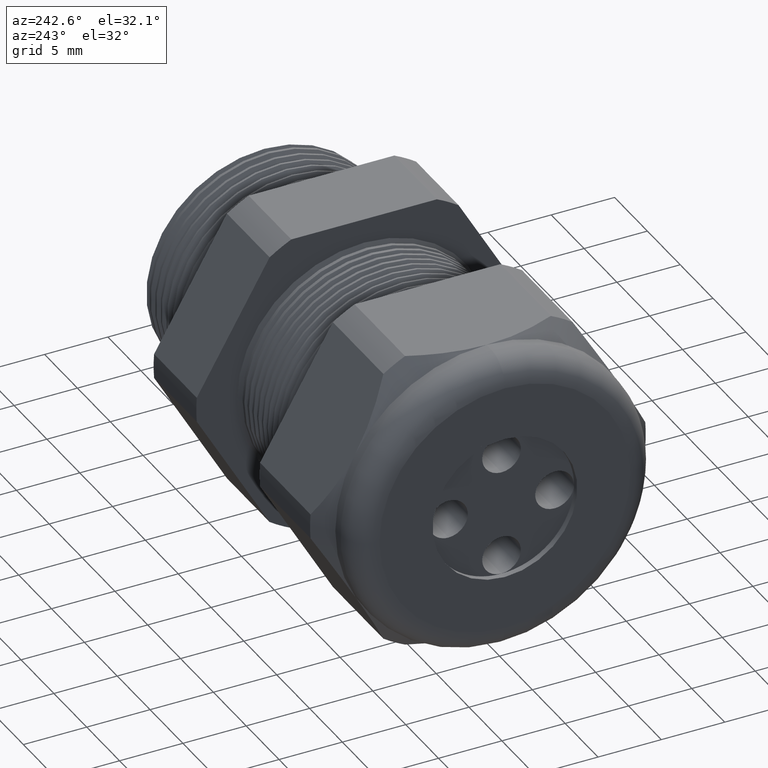
[diagram: clean part render]
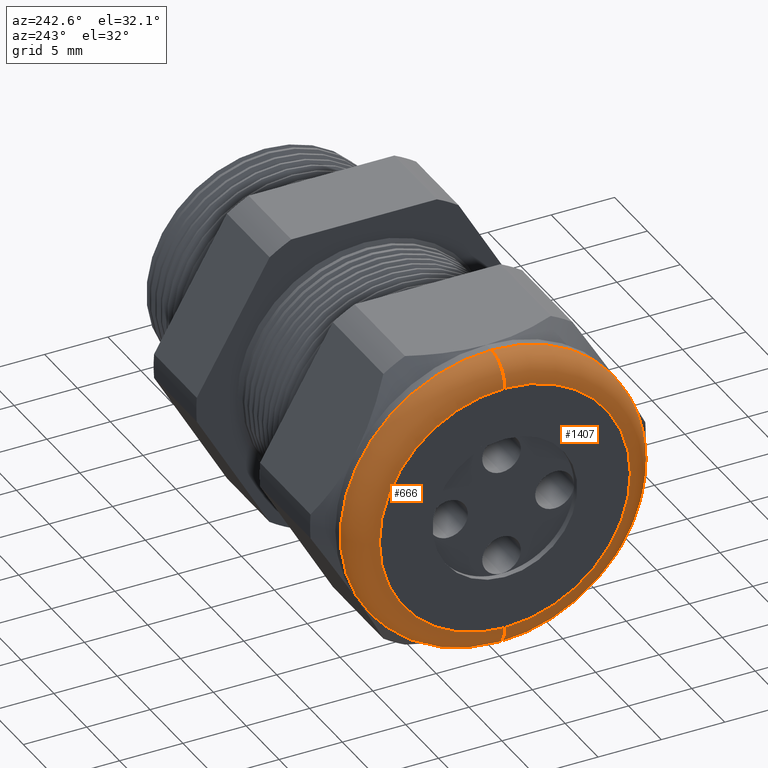
[diagram: same view with one multi-face feature highlighted, each face labeled with its STEP entity id]
A machine part, auxiliary view. The highlighted faces form ONE feature: a constant-radius fillet chain: 2 tangent blend faces with common blend radius 2.032 mm. The faces share edges in the B-rep.
Their STEP definitions:
[1] entity #1407 (Torus):
#642 = VERTEX_POINT ( 'NONE', #2950 ) ;
#644 = EDGE_CURVE ( 'NONE', #669, #645, #2949, .T. ) ;
#645 = VERTEX_POINT ( 'NONE', #2944 ) ;
#648 = VERTEX_POINT ( 'NONE', #2943 ) ;
#650 = EDGE_CURVE ( 'NONE', #642, #648, #2999, .T. ) ;
#669 = VERTEX_POINT ( 'NONE', #3021 ) ;
#1196 = EDGE_CURVE ( 'NONE', #645, #648, #4066, .T. ) ;
#1257 = EDGE_CURVE ( 'NONE', #642, #669, #4206, .T. ) ;
#1407 = ADVANCED_FACE ( 'NONE', ( #4427 ), #4426, .T. ) ;
#1408 = EDGE_LOOP ( 'NONE', ( #1409, #1410, #1411, #1412 ) ) ;
#1409 = ORIENTED_EDGE ( 'NONE', *, *, #644, .F. ) ;
#1410 = ORIENTED_EDGE ( 'NONE', *, *, #1257, .F. ) ;
#1411 = ORIENTED_EDGE ( 'NONE', *, *, #650, .T. ) ;
#1412 = ORIENTED_EDGE ( 'NONE', *, *, #1196, .F. ) ;
#2943 = CARTESIAN_POINT ( 'NONE',  ( -1.409999999999999900, 0.0000000000000000000, 0.3899999999999999600 ) ) ;
#2944 = CARTESIAN_POINT ( 'NONE',  ( -1.409999999999999900, 5.265981236333617600E-017, -0.3899999999999999600 ) ) ;
#2945 = DIRECTION ( 'NONE',  ( 0.0000000000000000000, -1.224646799147353900E-016, 1.000000000000000000 ) ) ;
#2946 = DIRECTION ( 'NONE',  ( 0.0000000000000000000, 1.000000000000000000, 1.224646799147353200E-016 ) ) ;
#2947 = CARTESIAN_POINT ( 'NONE',  ( -1.330000000000000100, 4.776122516674676800E-017, -0.3899999999999999600 ) ) ;
#2948 = AXIS2_PLACEMENT_3D ( 'NONE', #2947, #2946, #2945 ) ;
#2949 = CIRCLE ( 'NONE', #2948, 0.07999999999999996000 ) ;
#2950 = CARTESIAN_POINT ( 'NONE',  ( -1.330000000000000100, 5.755839955992558400E-017, 0.4699999999999999200 ) ) ;
#2995 = DIRECTION ( 'NONE',  ( 0.0000000000000000000, 0.0000000000000000000, -1.000000000000000000 ) ) ;
#2996 = DIRECTION ( 'NONE',  ( 0.0000000000000000000, -1.000000000000000000, 0.0000000000000000000 ) ) ;
#2997 = CARTESIAN_POINT ( 'NONE',  ( -1.330000000000000100, 0.0000000000000000000, 0.3899999999999999600 ) ) ;
#2998 = AXIS2_PLACEMENT_3D ( 'NONE', #2997, #2996, #2995 ) ;
#2999 = CIRCLE ( 'NONE', #2998, 0.07999999999999996000 ) ;
#3021 = CARTESIAN_POINT ( 'NONE',  ( -1.330000000000000100, 0.0000000000000000000, -0.4699999999999999200 ) ) ;
#4062 = DIRECTION ( 'NONE',  ( 0.0000000000000000000, 0.0000000000000000000, 1.000000000000000000 ) ) ;
#4063 = DIRECTION ( 'NONE',  ( -1.000000000000000000, 0.0000000000000000000, 0.0000000000000000000 ) ) ;
#4064 = CARTESIAN_POINT ( 'NONE',  ( -1.409999999999999900, 0.0000000000000000000, 0.0000000000000000000 ) ) ;
#4065 = AXIS2_PLACEMENT_3D ( 'NONE', #4064, #4063, #4062 ) ;
#4066 = CIRCLE ( 'NONE', #4065, 0.3899999999999999600 ) ;
#4203 = DIRECTION ( 'NONE',  ( 0.0000000000000000000, 0.0000000000000000000, 1.000000000000000000 ) ) ;
#4204 = DIRECTION ( 'NONE',  ( 1.000000000000000000, 0.0000000000000000000, 0.0000000000000000000 ) ) ;
#4205 = AXIS2_PLACEMENT_3D ( 'NONE', #4210, #4204, #4203 ) ;
#4206 = CIRCLE ( 'NONE', #4205, 0.4699999999999999200 ) ;
#4210 = CARTESIAN_POINT ( 'NONE',  ( -1.330000000000000100, 0.0000000000000000000, 0.0000000000000000000 ) ) ;
#4423 = DIRECTION ( 'NONE',  ( 0.0000000000000000000, 0.0000000000000000000, 1.000000000000000000 ) ) ;
#4424 = DIRECTION ( 'NONE',  ( -1.000000000000000000, 0.0000000000000000000, 0.0000000000000000000 ) ) ;
#4425 = AXIS2_PLACEMENT_3D ( 'NONE', #4432, #4424, #4423 ) ;
#4426 = TOROIDAL_SURFACE ( 'NONE', #4425, 0.3899999999999999600, 0.08000000000000000200 ) ;
#4427 = FACE_OUTER_BOUND ( 'NONE', #1408, .T. ) ;
#4432 = CARTESIAN_POINT ( 'NONE',  ( -1.330000000000000100, 0.0000000000000000000, 0.0000000000000000000 ) ) ;
[2] entity #666 (Torus):
#641 = EDGE_CURVE ( 'NONE', #669, #642, #2955, .T. ) ;
#642 = VERTEX_POINT ( 'NONE', #2950 ) ;
#643 = ORIENTED_EDGE ( 'NONE', *, *, #644, .T. ) ;
#644 = EDGE_CURVE ( 'NONE', #669, #645, #2949, .T. ) ;
#645 = VERTEX_POINT ( 'NONE', #2944 ) ;
#646 = ORIENTED_EDGE ( 'NONE', *, *, #647, .F. ) ;
#647 = EDGE_CURVE ( 'NONE', #648, #645, #2942, .T. ) ;
#648 = VERTEX_POINT ( 'NONE', #2943 ) ;
#649 = ORIENTED_EDGE ( 'NONE', *, *, #650, .F. ) ;
#650 = EDGE_CURVE ( 'NONE', #642, #648, #2999, .T. ) ;
#666 = ADVANCED_FACE ( 'NONE', ( #3027 ), #3026, .T. ) ;
#667 = EDGE_LOOP ( 'NONE', ( #668, #643, #646, #649 ) ) ;
#668 = ORIENTED_EDGE ( 'NONE', *, *, #641, .F. ) ;
#669 = VERTEX_POINT ( 'NONE', #3021 ) ;
#2938 = DIRECTION ( 'NONE',  ( 0.0000000000000000000, 0.0000000000000000000, 1.000000000000000000 ) ) ;
#2939 = DIRECTION ( 'NONE',  ( -1.000000000000000000, 0.0000000000000000000, 0.0000000000000000000 ) ) ;
#2940 = CARTESIAN_POINT ( 'NONE',  ( -1.409999999999999900, 0.0000000000000000000, 0.0000000000000000000 ) ) ;
#2941 = AXIS2_PLACEMENT_3D ( 'NONE', #2940, #2939, #2938 ) ;
#2942 = CIRCLE ( 'NONE', #2941, 0.3899999999999999600 ) ;
#2943 = CARTESIAN_POINT ( 'NONE',  ( -1.409999999999999900, 0.0000000000000000000, 0.3899999999999999600 ) ) ;
#2944 = CARTESIAN_POINT ( 'NONE',  ( -1.409999999999999900, 5.265981236333617600E-017, -0.3899999999999999600 ) ) ;
#2945 = DIRECTION ( 'NONE',  ( 0.0000000000000000000, -1.224646799147353900E-016, 1.000000000000000000 ) ) ;
#2946 = DIRECTION ( 'NONE',  ( 0.0000000000000000000, 1.000000000000000000, 1.224646799147353200E-016 ) ) ;
#2947 = CARTESIAN_POINT ( 'NONE',  ( -1.330000000000000100, 4.776122516674676800E-017, -0.3899999999999999600 ) ) ;
#2948 = AXIS2_PLACEMENT_3D ( 'NONE', #2947, #2946, #2945 ) ;
#2949 = CIRCLE ( 'NONE', #2948, 0.07999999999999996000 ) ;
#2950 = CARTESIAN_POINT ( 'NONE',  ( -1.330000000000000100, 5.755839955992558400E-017, 0.4699999999999999200 ) ) ;
#2951 = DIRECTION ( 'NONE',  ( 0.0000000000000000000, 0.0000000000000000000, 1.000000000000000000 ) ) ;
#2952 = DIRECTION ( 'NONE',  ( 1.000000000000000000, 0.0000000000000000000, 0.0000000000000000000 ) ) ;
#2953 = CARTESIAN_POINT ( 'NONE',  ( -1.330000000000000100, 0.0000000000000000000, 0.0000000000000000000 ) ) ;
#2954 = AXIS2_PLACEMENT_3D ( 'NONE', #2953, #2952, #2951 ) ;
#2955 = CIRCLE ( 'NONE', #2954, 0.4699999999999999200 ) ;
#2995 = DIRECTION ( 'NONE',  ( 0.0000000000000000000, 0.0000000000000000000, -1.000000000000000000 ) ) ;
#2996 = DIRECTION ( 'NONE',  ( 0.0000000000000000000, -1.000000000000000000, 0.0000000000000000000 ) ) ;
#2997 = CARTESIAN_POINT ( 'NONE',  ( -1.330000000000000100, 0.0000000000000000000, 0.3899999999999999600 ) ) ;
#2998 = AXIS2_PLACEMENT_3D ( 'NONE', #2997, #2996, #2995 ) ;
#2999 = CIRCLE ( 'NONE', #2998, 0.07999999999999996000 ) ;
#3021 = CARTESIAN_POINT ( 'NONE',  ( -1.330000000000000100, 0.0000000000000000000, -0.4699999999999999200 ) ) ;
#3022 = DIRECTION ( 'NONE',  ( 0.0000000000000000000, 0.0000000000000000000, 1.000000000000000000 ) ) ;
#3023 = DIRECTION ( 'NONE',  ( -1.000000000000000000, 0.0000000000000000000, 0.0000000000000000000 ) ) ;
#3024 = CARTESIAN_POINT ( 'NONE',  ( -1.330000000000000100, 0.0000000000000000000, 0.0000000000000000000 ) ) ;
#3025 = AXIS2_PLACEMENT_3D ( 'NONE', #3024, #3023, #3022 ) ;
#3026 = TOROIDAL_SURFACE ( 'NONE', #3025, 0.3899999999999999600, 0.08000000000000000200 ) ;
#3027 = FACE_OUTER_BOUND ( 'NONE', #667, .T. ) ;